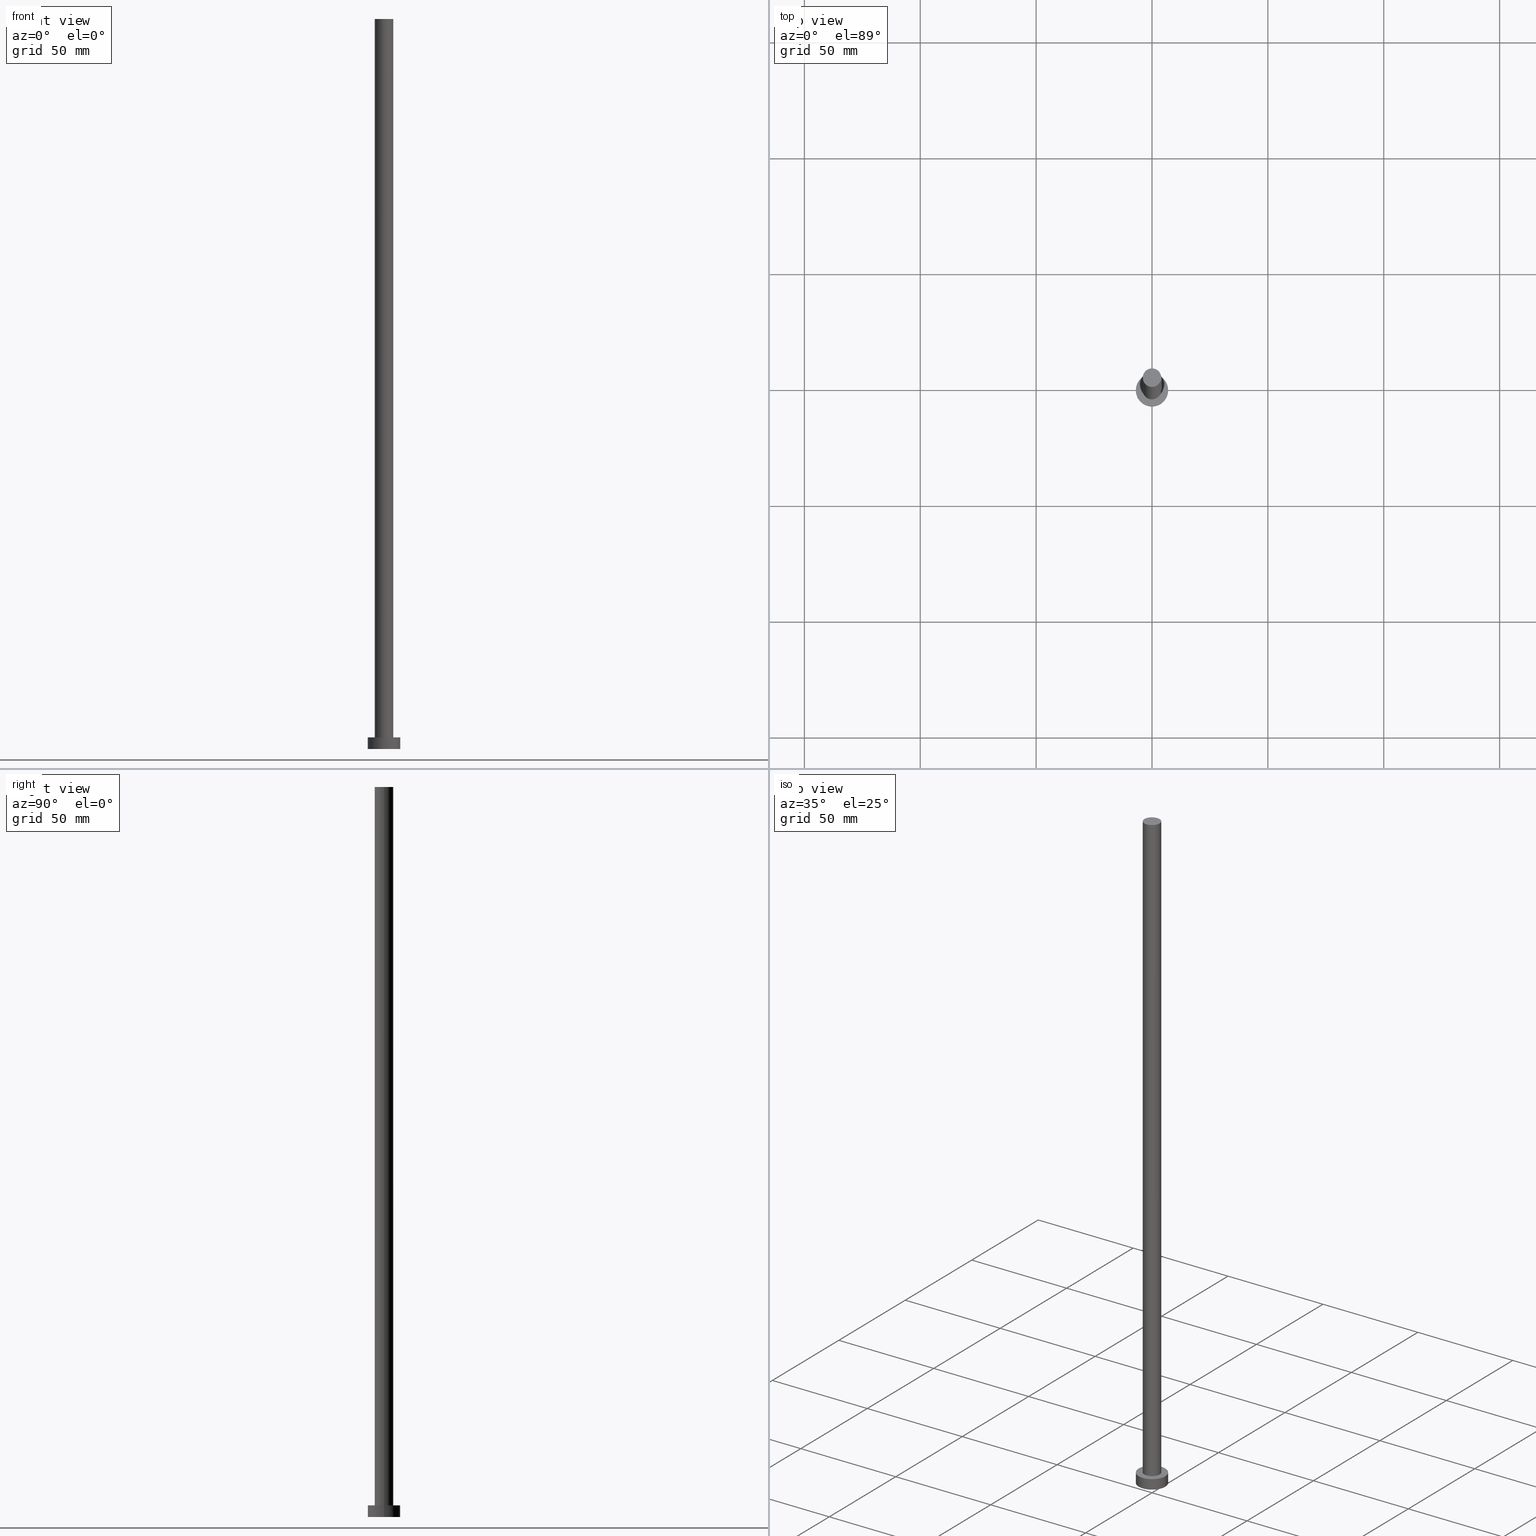
[diagram: canonical four-view strip — front | top / right | iso, engineering-drawing reading convention]
A machine part, canonical four-view strip (front | top / right | iso — engineering-drawing reading convention). The complete STEP part file that produces these views, byte-faithful:
ISO-10303-21;
HEADER;
FILE_DESCRIPTION (( 'STEP AP203' ),
    '1' );
FILE_NAME ('0b4e.STEP',
    '2023-02-13T12:56:48',
    ( '' ),
    ( '' ),
    'SwSTEP 2.0',
    'SolidWorks 2019',
    '' );
FILE_SCHEMA (( 'CONFIG_CONTROL_DESIGN' ));
ENDSEC;

DATA;
#1 = AXIS2_PLACEMENT_3D ( 'NONE', #209, #30, #132 ) ;
#2 = DATE_AND_TIME ( #187, #92 ) ;
#3 = CC_DESIGN_SECURITY_CLASSIFICATION ( #102, ( #8 ) ) ;
#4 = CLOSED_SHELL ( 'NONE', ( #26, #217, #212, #153, #43, #172, #232 ) ) ;
#5 = LINE ( 'NONE', #134, #45 ) ;
#6 = APPROVAL ( #237, 'NEUR�EN�' ) ;
#7 = CARTESIAN_POINT ( 'NONE',  ( 0.000000000000000000, 0.000000000000000000, 315.0000000000000000 ) ) ;
#8 = PRODUCT_DEFINITION_FORMATION_WITH_SPECIFIED_SOURCE ( 'LIBOVOLN�', '', #84, .NOT_KNOWN. ) ;
#9 = DIRECTION ( 'NONE',  ( 0.000000000000000000, 0.000000000000000000, 1.000000000000000000 ) ) ;
#10 = PLANE ( 'NONE',  #50 ) ;
#11 = CC_DESIGN_PERSON_AND_ORGANIZATION_ASSIGNMENT ( #16, #181, ( #84 ) ) ;
#12 = EDGE_LOOP ( 'NONE', ( #126, #122 ) ) ;
#13 =( NAMED_UNIT ( * ) PLANE_ANGLE_UNIT ( ) SI_UNIT ( $, .RADIAN. ) );
#14 = ORIENTED_EDGE ( 'NONE', *, *, #20, .F. ) ;
#15 = ORIENTED_EDGE ( 'NONE', *, *, #156, .F. ) ;
#16 = PERSON_AND_ORGANIZATION ( #247, #128 ) ;
#17 = DIRECTION ( 'NONE',  ( -0.000000000000000000, -0.000000000000000000, -1.000000000000000000 ) ) ;
#18 = DIRECTION ( 'NONE',  ( -1.000000000000000000, 0.000000000000000000, 0.000000000000000000 ) ) ;
#19 = SECURITY_CLASSIFICATION_LEVEL ( 'unclassified' ) ;
#20 = EDGE_CURVE ( 'NONE', #163, #213, #219, .T. ) ;
#21 = AXIS2_PLACEMENT_3D ( 'NONE', #138, #105, #184 ) ;
#22 = PERSON_AND_ORGANIZATION ( #247, #128 ) ;
#23 = PERSON_AND_ORGANIZATION_ROLE ( 'creator' ) ;
#24 = ORIENTED_EDGE ( 'NONE', *, *, #54, .T. ) ;
#25 = CARTESIAN_POINT ( 'NONE',  ( -7.000000000000000000, 0.000000000000000000, 5.000000000000000000 ) ) ;
#26 = ADVANCED_FACE ( 'NONE', ( #39 ), #144, .T. ) ;
#27 = AXIS2_PLACEMENT_3D ( 'NONE', #7, #91, #225 ) ;
#28 = DIRECTION ( 'NONE',  ( 1.000000000000000000, 0.000000000000000000, -0.000000000000000000 ) ) ;
#29 = DIRECTION ( 'NONE',  ( 0.000000000000000000, 0.000000000000000000, 1.000000000000000000 ) ) ;
#30 = DIRECTION ( 'NONE',  ( 0.000000000000000000, 0.000000000000000000, 1.000000000000000000 ) ) ;
#31 = ORIENTED_EDGE ( 'NONE', *, *, #148, .T. ) ;
#32 = CARTESIAN_POINT ( 'NONE',  ( 0.000000000000000000, 0.000000000000000000, 5.000000000000000000 ) ) ;
#33 = EDGE_LOOP ( 'NONE', ( #139, #183 ) ) ;
#34 = CARTESIAN_POINT ( 'NONE',  ( -7.000000000000000000, 0.000000000000000000, 5.000000000000000000 ) ) ;
#35 = CC_DESIGN_APPROVAL ( #220, ( #102 ) ) ;
#36 = EDGE_CURVE ( 'NONE', #196, #77, #205, .T. ) ;
#37 = EDGE_LOOP ( 'NONE', ( #117, #124, #99, #253 ) ) ;
#38 = VECTOR ( 'NONE', #145, 1000.000000000000000 ) ;
#39 = FACE_OUTER_BOUND ( 'NONE', #63, .T. ) ;
#40 = MECHANICAL_CONTEXT ( 'NONE', #169, 'mechanical' ) ;
#41 = CARTESIAN_POINT ( 'NONE',  ( 0.000000000000000000, 0.000000000000000000, 315.0000000000000000 ) ) ;
#42 = CARTESIAN_POINT ( 'NONE',  ( -4.000000000000000000, 0.000000000000000000, 5.000000000000000000 ) ) ;
#43 = ADVANCED_FACE ( 'NONE', ( #137 ), #207, .F. ) ;
#44 = PRODUCT_DEFINITION_SHAPE ( 'NONE', 'NONE',  #242 ) ;
#45 = VECTOR ( 'NONE', #70, 1000.000000000000000 ) ;
#46 = PERSON_AND_ORGANIZATION_ROLE ( 'design_supplier' ) ;
#47 = COORDINATED_UNIVERSAL_TIME_OFFSET ( 1, 0, .AHEAD. ) ;
#48 = COORDINATED_UNIVERSAL_TIME_OFFSET ( 1, 0, .AHEAD. ) ;
#49 = DIRECTION ( 'NONE',  ( 0.000000000000000000, 0.000000000000000000, 1.000000000000000000 ) ) ;
#50 = AXIS2_PLACEMENT_3D ( 'NONE', #176, #248, #28 ) ;
#51 = CARTESIAN_POINT ( 'NONE',  ( 0.000000000000000000, 0.000000000000000000, 0.000000000000000000 ) ) ;
#52 = DIRECTION ( 'NONE',  ( 0.000000000000000000, 0.000000000000000000, 1.000000000000000000 ) ) ;
#53 = PERSON_AND_ORGANIZATION ( #247, #128 ) ;
#54 = EDGE_CURVE ( 'NONE', #215, #180, #244, .T. ) ;
#55 = DIRECTION ( 'NONE',  ( -0.000000000000000000, -0.000000000000000000, -1.000000000000000000 ) ) ;
#56 = DIRECTION ( 'NONE',  ( 0.000000000000000000, 0.000000000000000000, 1.000000000000000000 ) ) ;
#57 = APPLICATION_PROTOCOL_DEFINITION ( 'international standard', 'config_control_design', 1994, #169 ) ;
#58 = CC_DESIGN_APPROVAL ( #6, ( #242 ) ) ;
#59 = ADVANCED_BREP_SHAPE_REPRESENTATION ( '0b4e', ( #167, #21 ), #72 ) ;
#60 = CC_DESIGN_PERSON_AND_ORGANIZATION_ASSIGNMENT ( #204, #189, ( #8 ) ) ;
#61 = EDGE_LOOP ( 'NONE', ( #95, #152, #24, #158 ) ) ;
#62 = CARTESIAN_POINT ( 'NONE',  ( 7.000000000000000000, 8.572527594031473190E-16, 5.000000000000000000 ) ) ;
#63 = EDGE_LOOP ( 'NONE', ( #161, #31, #251, #159 ) ) ;
#64 = CALENDAR_DATE ( 2023, 13, 2 ) ;
#65 = DATE_AND_TIME ( #82, #227 ) ;
#66 = EDGE_CURVE ( 'NONE', #77, #196, #150, .T. ) ;
#67 = DATE_AND_TIME ( #64, #208 ) ;
#68 = PERSON_AND_ORGANIZATION ( #247, #128 ) ;
#69 = DATE_AND_TIME ( #243, #112 ) ;
#70 = DIRECTION ( 'NONE',  ( -0.000000000000000000, -0.000000000000000000, -1.000000000000000000 ) ) ;
#71 = CARTESIAN_POINT ( 'NONE',  ( -4.000000000000000000, 0.000000000000000000, 315.0000000000000000 ) ) ;
#72 =( GEOMETRIC_REPRESENTATION_CONTEXT ( 3 ) GLOBAL_UNCERTAINTY_ASSIGNED_CONTEXT ( ( #230 ) ) GLOBAL_UNIT_ASSIGNED_CONTEXT ( ( #98, #13, #119 ) ) REPRESENTATION_CONTEXT ( 'NONE', 'WORKASPACE' ) );
#73 = CARTESIAN_POINT ( 'NONE',  ( -7.000000000000000000, 0.000000000000000000, 0.000000000000000000 ) ) ;
#74 = CARTESIAN_POINT ( 'NONE',  ( 0.000000000000000000, 0.000000000000000000, 5.000000000000000000 ) ) ;
#75 = APPROVAL ( #221, 'NEUR�EN�' ) ;
#76 = FACE_OUTER_BOUND ( 'NONE', #162, .T. ) ;
#77 = VERTEX_POINT ( 'NONE', #73 ) ;
#78 = APPROVAL_PERSON_ORGANIZATION ( #129, #220, #201 ) ;
#79 = EDGE_LOOP ( 'NONE', ( #143, #14, #236, #103 ) ) ;
#80 = APPLICATION_PROTOCOL_DEFINITION ( 'international standard', 'config_control_design', 1994, #165 ) ;
#81 = VECTOR ( 'NONE', #55, 1000.000000000000000 ) ;
#82 = CALENDAR_DATE ( 2023, 13, 2 ) ;
#83 = DIRECTION ( 'NONE',  ( -0.000000000000000000, -0.000000000000000000, -1.000000000000000000 ) ) ;
#84 = PRODUCT ( '0b4e', '0b4e', '', ( #40 ) ) ;
#85 = PERSON_AND_ORGANIZATION ( #247, #128 ) ;
#86 = CIRCLE ( 'NONE', #249, 4.000000000000000000 ) ;
#87 = DATE_TIME_ROLE ( 'classification_date' ) ;
#88 = AXIS2_PLACEMENT_3D ( 'NONE', #199, #17, #177 ) ;
#89 = DIRECTION ( 'NONE',  ( 0.000000000000000000, 0.000000000000000000, 1.000000000000000000 ) ) ;
#90 = CC_DESIGN_PERSON_AND_ORGANIZATION_ASSIGNMENT ( #85, #109, ( #102 ) ) ;
#91 = DIRECTION ( 'NONE',  ( -0.000000000000000000, -0.000000000000000000, -1.000000000000000000 ) ) ;
#92 = LOCAL_TIME ( 13, 56, 48.00000000000000000, #168 ) ;
#93 = DIRECTION ( 'NONE',  ( -0.000000000000000000, -0.000000000000000000, -1.000000000000000000 ) ) ;
#94 = DIRECTION ( 'NONE',  ( 1.000000000000000000, 0.000000000000000000, 0.000000000000000000 ) ) ;
#95 = ORIENTED_EDGE ( 'NONE', *, *, #148, .F. ) ;
#96 = CARTESIAN_POINT ( 'NONE',  ( 0.000000000000000000, 0.000000000000000000, 315.0000000000000000 ) ) ;
#97 = CIRCLE ( 'NONE', #121, 7.000000000000000000 ) ;
#98 =( LENGTH_UNIT ( ) NAMED_UNIT ( * ) SI_UNIT ( .MILLI., .METRE. ) );
#99 = ORIENTED_EDGE ( 'NONE', *, *, #36, .T. ) ;
#100 = LINE ( 'NONE', #34, #38 ) ;
#101 = CARTESIAN_POINT ( 'NONE',  ( 7.000000000000000000, 8.572527594031473190E-16, 5.000000000000000000 ) ) ;
#102 = SECURITY_CLASSIFICATION ( '', '', #19 ) ;
#103 = ORIENTED_EDGE ( 'NONE', *, *, #66, .T. ) ;
#104 = AXIS2_PLACEMENT_3D ( 'NONE', #51, #9, #170 ) ;
#105 = DIRECTION ( 'NONE',  ( 0.000000000000000000, 0.000000000000000000, 1.000000000000000000 ) ) ;
#106 = COORDINATED_UNIVERSAL_TIME_OFFSET ( 1, 0, .AHEAD. ) ;
#107 = PERSON_AND_ORGANIZATION ( #247, #128 ) ;
#108 = CIRCLE ( 'NONE', #114, 4.000000000000000000 ) ;
#109 = PERSON_AND_ORGANIZATION_ROLE ( 'classification_officer' ) ;
#110 = EDGE_CURVE ( 'NONE', #178, #180, #86, .T. ) ;
#111 = APPROVAL_ROLE ( '' ) ;
#112 = LOCAL_TIME ( 13, 56, 48.00000000000000000, #47 ) ;
#113 = CARTESIAN_POINT ( 'NONE',  ( 0.000000000000000000, 0.000000000000000000, 5.000000000000000000 ) ) ;
#114 = AXIS2_PLACEMENT_3D ( 'NONE', #118, #252, #214 ) ;
#115 = FACE_OUTER_BOUND ( 'NONE', #61, .T. ) ;
#116 = FACE_BOUND ( 'NONE', #254, .T. ) ;
#117 = ORIENTED_EDGE ( 'NONE', *, *, #120, .F. ) ;
#118 = CARTESIAN_POINT ( 'NONE',  ( 0.000000000000000000, 0.000000000000000000, 315.0000000000000000 ) ) ;
#119 =( NAMED_UNIT ( * ) SI_UNIT ( $, .STERADIAN. ) SOLID_ANGLE_UNIT ( ) );
#120 = EDGE_CURVE ( 'NONE', #213, #163, #97, .T. ) ;
#121 = AXIS2_PLACEMENT_3D ( 'NONE', #113, #52, #154 ) ;
#122 = ORIENTED_EDGE ( 'NONE', *, *, #120, .T. ) ;
#123 = DIRECTION ( 'NONE',  ( 1.000000000000000000, 0.000000000000000000, -0.000000000000000000 ) ) ;
#124 = ORIENTED_EDGE ( 'NONE', *, *, #239, .T. ) ;
#125 = PLANE ( 'NONE',  #240 ) ;
#126 = ORIENTED_EDGE ( 'NONE', *, *, #20, .T. ) ;
#127 = CARTESIAN_POINT ( 'NONE',  ( -4.000000000000000000, 0.000000000000000000, 315.0000000000000000 ) ) ;
#128 = ORGANIZATION ( 'NEUR�EN�', 'NEUR�EN�', '' ) ;
#129 = PERSON_AND_ORGANIZATION ( #247, #128 ) ;
#130 = EDGE_CURVE ( 'NONE', #215, #141, #186, .T. ) ;
#131 = AXIS2_PLACEMENT_3D ( 'NONE', #246, #29, #245 ) ;
#132 = DIRECTION ( 'NONE',  ( 1.000000000000000000, 0.000000000000000000, 0.000000000000000000 ) ) ;
#133 = CC_DESIGN_APPROVAL ( #75, ( #8 ) ) ;
#134 = CARTESIAN_POINT ( 'NONE',  ( 4.000000000000000000, 4.898587196589412829E-16, 315.0000000000000000 ) ) ;
#135 = CARTESIAN_POINT ( 'NONE',  ( 4.000000000000000000, 4.898587196589412829E-16, 5.000000000000000000 ) ) ;
#136 = CC_DESIGN_DATE_AND_TIME_ASSIGNMENT ( #65, #87, ( #102 ) ) ;
#137 = FACE_OUTER_BOUND ( 'NONE', #33, .T. ) ;
#138 = CARTESIAN_POINT ( 'NONE',  ( 0.000000000000000000, 0.000000000000000000, 0.000000000000000000 ) ) ;
#139 = ORIENTED_EDGE ( 'NONE', *, *, #66, .F. ) ;
#140 = DIRECTION ( 'NONE',  ( 0.000000000000000000, 0.000000000000000000, 1.000000000000000000 ) ) ;
#141 = VERTEX_POINT ( 'NONE', #192 ) ;
#142 = APPROVAL_PERSON_ORGANIZATION ( #53, #6, #211 ) ;
#143 = ORIENTED_EDGE ( 'NONE', *, *, #239, .F. ) ;
#144 = CYLINDRICAL_SURFACE ( 'NONE', #151, 4.000000000000000000 ) ;
#145 = DIRECTION ( 'NONE',  ( -0.000000000000000000, -0.000000000000000000, -1.000000000000000000 ) ) ;
#146 = PRODUCT_RELATED_PRODUCT_CATEGORY ( 'detail', '', ( #84 ) ) ;
#147 = CIRCLE ( 'NONE', #191, 4.000000000000000000 ) ;
#148 = EDGE_CURVE ( 'NONE', #141, #178, #5, .T. ) ;
#149 = APPROVAL_DATE_TIME ( #202, #6 ) ;
#150 = CIRCLE ( 'NONE', #200, 7.000000000000000000 ) ;
#151 = AXIS2_PLACEMENT_3D ( 'NONE', #41, #83, #18 ) ;
#152 = ORIENTED_EDGE ( 'NONE', *, *, #130, .F. ) ;
#153 = ADVANCED_FACE ( 'NONE', ( #116, #224 ), #10, .T. ) ;
#154 = DIRECTION ( 'NONE',  ( 1.000000000000000000, 0.000000000000000000, 0.000000000000000000 ) ) ;
#155 = AXIS2_PLACEMENT_3D ( 'NONE', #32, #216, #250 ) ;
#156 = EDGE_CURVE ( 'NONE', #180, #178, #147, .T. ) ;
#157 = CARTESIAN_POINT ( 'NONE',  ( 0.000000000000000000, 0.000000000000000000, 0.000000000000000000 ) ) ;
#158 = ORIENTED_EDGE ( 'NONE', *, *, #156, .T. ) ;
#159 = ORIENTED_EDGE ( 'NONE', *, *, #54, .F. ) ;
#160 = CYLINDRICAL_SURFACE ( 'NONE', #155, 7.000000000000000000 ) ;
#161 = ORIENTED_EDGE ( 'NONE', *, *, #182, .F. ) ;
#162 = EDGE_LOOP ( 'NONE', ( #175, #210 ) ) ;
#163 = VERTEX_POINT ( 'NONE', #25 ) ;
#164 = APPROVAL_DATE_TIME ( #69, #75 ) ;
#165 = APPLICATION_CONTEXT ( 'configuration controlled 3d designs of mechanical parts and assemblies' ) ;
#166 = APPROVAL_DATE_TIME ( #67, #220 ) ;
#167 = MANIFOLD_SOLID_BREP ( 'P�idat vysunut�m3', #4 ) ;
#168 = COORDINATED_UNIVERSAL_TIME_OFFSET ( 1, 0, .AHEAD. ) ;
#169 = APPLICATION_CONTEXT ( 'configuration controlled 3d designs of mechanical parts and assemblies' ) ;
#170 = DIRECTION ( 'NONE',  ( 1.000000000000000000, 0.000000000000000000, -0.000000000000000000 ) ) ;
#171 = DIRECTION ( 'NONE',  ( 1.000000000000000000, 0.000000000000000000, 0.000000000000000000 ) ) ;
#172 = ADVANCED_FACE ( 'NONE', ( #115 ), #193, .T. ) ;
#173 = LOCAL_TIME ( 13, 56, 48.00000000000000000, #238 ) ;
#174 = DIRECTION ( 'NONE',  ( 1.000000000000000000, 0.000000000000000000, 0.000000000000000000 ) ) ;
#175 = ORIENTED_EDGE ( 'NONE', *, *, #130, .T. ) ;
#176 = CARTESIAN_POINT ( 'NONE',  ( 0.000000000000000000, 0.000000000000000000, 5.000000000000000000 ) ) ;
#177 = DIRECTION ( 'NONE',  ( -1.000000000000000000, 0.000000000000000000, 0.000000000000000000 ) ) ;
#178 = VERTEX_POINT ( 'NONE', #135 ) ;
#179 = FACE_OUTER_BOUND ( 'NONE', #79, .T. ) ;
#180 = VERTEX_POINT ( 'NONE', #42 ) ;
#181 = PERSON_AND_ORGANIZATION_ROLE ( 'design_owner' ) ;
#182 = EDGE_CURVE ( 'NONE', #141, #215, #108, .T. ) ;
#183 = ORIENTED_EDGE ( 'NONE', *, *, #36, .F. ) ;
#184 = DIRECTION ( 'NONE',  ( 1.000000000000000000, 0.000000000000000000, 0.000000000000000000 ) ) ;
#185 = CC_DESIGN_PERSON_AND_ORGANIZATION_ASSIGNMENT ( #22, #46, ( #8 ) ) ;
#186 = CIRCLE ( 'NONE', #1, 4.000000000000000000 ) ;
#187 = CALENDAR_DATE ( 2023, 13, 2 ) ;
#188 = APPROVAL_STATUS ( 'not_yet_approved' ) ;
#189 = PERSON_AND_ORGANIZATION_ROLE ( 'creator' ) ;
#190 = CC_DESIGN_DATE_AND_TIME_ASSIGNMENT ( #2, #222, ( #242 ) ) ;
#191 = AXIS2_PLACEMENT_3D ( 'NONE', #74, #89, #171 ) ;
#192 = CARTESIAN_POINT ( 'NONE',  ( 4.000000000000000000, 4.898587196589412829E-16, 315.0000000000000000 ) ) ;
#193 = CYLINDRICAL_SURFACE ( 'NONE', #27, 4.000000000000000000 ) ;
#194 = AXIS2_PLACEMENT_3D ( 'NONE', #233, #56, #218 ) ;
#195 = ORIENTED_EDGE ( 'NONE', *, *, #110, .F. ) ;
#196 = VERTEX_POINT ( 'NONE', #234 ) ;
#197 = FACE_OUTER_BOUND ( 'NONE', #37, .T. ) ;
#198 = CC_DESIGN_PERSON_AND_ORGANIZATION_ASSIGNMENT ( #107, #23, ( #242 ) ) ;
#199 = CARTESIAN_POINT ( 'NONE',  ( 0.000000000000000000, 0.000000000000000000, 5.000000000000000000 ) ) ;
#200 = AXIS2_PLACEMENT_3D ( 'NONE', #157, #206, #174 ) ;
#201 = APPROVAL_ROLE ( '' ) ;
#202 = DATE_AND_TIME ( #255, #173 ) ;
#203 = VECTOR ( 'NONE', #93, 1000.000000000000000 ) ;
#204 = PERSON_AND_ORGANIZATION ( #247, #128 ) ;
#205 = CIRCLE ( 'NONE', #131, 7.000000000000000000 ) ;
#206 = DIRECTION ( 'NONE',  ( 0.000000000000000000, 0.000000000000000000, 1.000000000000000000 ) ) ;
#207 = PLANE ( 'NONE',  #104 ) ;
#208 = LOCAL_TIME ( 13, 56, 48.00000000000000000, #48 ) ;
#209 = CARTESIAN_POINT ( 'NONE',  ( 0.000000000000000000, 0.000000000000000000, 315.0000000000000000 ) ) ;
#210 = ORIENTED_EDGE ( 'NONE', *, *, #182, .T. ) ;
#211 = APPROVAL_ROLE ( '' ) ;
#212 = ADVANCED_FACE ( 'NONE', ( #179 ), #160, .T. ) ;
#213 = VERTEX_POINT ( 'NONE', #62 ) ;
#214 = DIRECTION ( 'NONE',  ( 1.000000000000000000, 0.000000000000000000, 0.000000000000000000 ) ) ;
#215 = VERTEX_POINT ( 'NONE', #127 ) ;
#216 = DIRECTION ( 'NONE',  ( -0.000000000000000000, -0.000000000000000000, -1.000000000000000000 ) ) ;
#217 = ADVANCED_FACE ( 'NONE', ( #197 ), #229, .T. ) ;
#218 = DIRECTION ( 'NONE',  ( 1.000000000000000000, 0.000000000000000000, 0.000000000000000000 ) ) ;
#219 = CIRCLE ( 'NONE', #194, 7.000000000000000000 ) ;
#220 = APPROVAL ( #188, 'NEUR�EN�' ) ;
#221 = APPROVAL_STATUS ( 'not_yet_approved' ) ;
#222 = DATE_TIME_ROLE ( 'creation_date' ) ;
#223 = DESIGN_CONTEXT ( 'detailed design', #165, 'design' ) ;
#224 = FACE_OUTER_BOUND ( 'NONE', #12, .T. ) ;
#225 = DIRECTION ( 'NONE',  ( -1.000000000000000000, 0.000000000000000000, 0.000000000000000000 ) ) ;
#226 = CARTESIAN_POINT ( 'NONE',  ( 0.000000000000000000, 0.000000000000000000, 5.000000000000000000 ) ) ;
#227 = LOCAL_TIME ( 13, 56, 48.00000000000000000, #106 ) ;
#228 = EDGE_CURVE ( 'NONE', #163, #77, #100, .T. ) ;
#229 = CYLINDRICAL_SURFACE ( 'NONE', #88, 7.000000000000000000 ) ;
#230 = UNCERTAINTY_MEASURE_WITH_UNIT (LENGTH_MEASURE( 1.000000000000000082E-05 ), #98, 'distance_accuracy_value', 'NONE');
#231 = LINE ( 'NONE', #101, #81 ) ;
#232 = ADVANCED_FACE ( 'NONE', ( #76 ), #125, .T. ) ;
#233 = CARTESIAN_POINT ( 'NONE',  ( 0.000000000000000000, 0.000000000000000000, 5.000000000000000000 ) ) ;
#234 = CARTESIAN_POINT ( 'NONE',  ( 7.000000000000000000, 8.572527594031473190E-16, 0.000000000000000000 ) ) ;
#235 = APPROVAL_PERSON_ORGANIZATION ( #68, #75, #111 ) ;
#236 = ORIENTED_EDGE ( 'NONE', *, *, #228, .T. ) ;
#237 = APPROVAL_STATUS ( 'not_yet_approved' ) ;
#238 = COORDINATED_UNIVERSAL_TIME_OFFSET ( 1, 0, .AHEAD. ) ;
#239 = EDGE_CURVE ( 'NONE', #213, #196, #231, .T. ) ;
#240 = AXIS2_PLACEMENT_3D ( 'NONE', #96, #140, #123 ) ;
#241 = SHAPE_DEFINITION_REPRESENTATION ( #44, #59 ) ;
#242 = PRODUCT_DEFINITION ( 'NEZN�M�', '', #8, #223 ) ;
#243 = CALENDAR_DATE ( 2023, 13, 2 ) ;
#244 = LINE ( 'NONE', #71, #203 ) ;
#245 = DIRECTION ( 'NONE',  ( 1.000000000000000000, 0.000000000000000000, 0.000000000000000000 ) ) ;
#246 = CARTESIAN_POINT ( 'NONE',  ( 0.000000000000000000, 0.000000000000000000, 0.000000000000000000 ) ) ;
#247 = PERSON ( 'NEUR�EN�', 'NEUR�EN�', 'NEUR�EN�', ('NEUR�EN�'), ('NEUR�EN�'), ('NEUR�EN�') ) ;
#248 = DIRECTION ( 'NONE',  ( 0.000000000000000000, 0.000000000000000000, 1.000000000000000000 ) ) ;
#249 = AXIS2_PLACEMENT_3D ( 'NONE', #226, #49, #94 ) ;
#250 = DIRECTION ( 'NONE',  ( -1.000000000000000000, 0.000000000000000000, 0.000000000000000000 ) ) ;
#251 = ORIENTED_EDGE ( 'NONE', *, *, #110, .T. ) ;
#252 = DIRECTION ( 'NONE',  ( 0.000000000000000000, 0.000000000000000000, 1.000000000000000000 ) ) ;
#253 = ORIENTED_EDGE ( 'NONE', *, *, #228, .F. ) ;
#254 = EDGE_LOOP ( 'NONE', ( #15, #195 ) ) ;
#255 = CALENDAR_DATE ( 2023, 13, 2 ) ;
ENDSEC;
END-ISO-10303-21;
